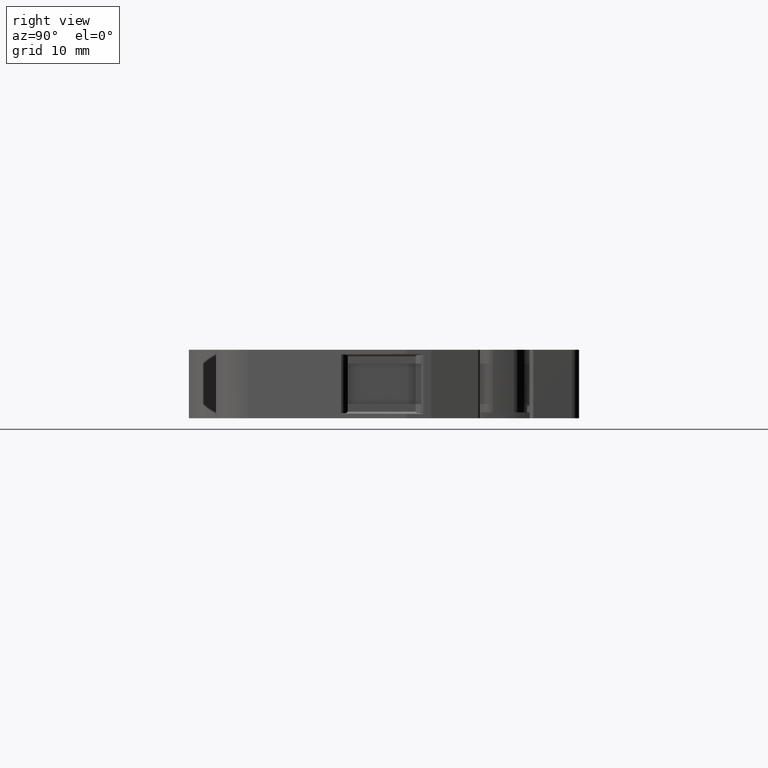
[diagram: clean part render]
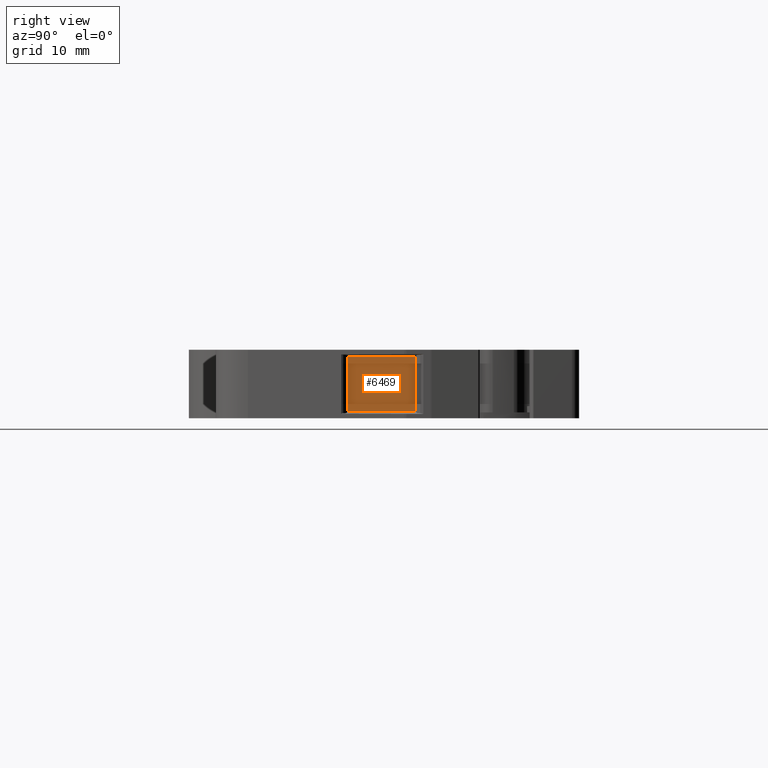
[diagram: same view with one face highlighted and labeled with its STEP entity id]
A machine part, right view. The second image highlights one B-rep face of the part: STEP entity #6469.
In plain terms, the highlighted planar face has unit normal (1, 0, 0).
Its self-contained STEP definition (entity closure, byte-faithful):
#315 = EDGE_CURVE ( 'NONE', #379, #6428, #488, .T. ) ;
#379 = VERTEX_POINT ( 'NONE', #1048 ) ;
#453 = VECTOR ( 'NONE', #994, 1000.000000000000000 ) ;
#488 = LINE ( 'NONE', #7469, #453 ) ;
#915 = VERTEX_POINT ( 'NONE', #11056 ) ;
#950 = ORIENTED_EDGE ( 'NONE', *, *, #2141, .T. ) ;
#994 = DIRECTION ( 'NONE',  ( 0.0000000000000000000, -1.000000000000000000, -6.282148381557110007E-14 ) ) ;
#1048 = CARTESIAN_POINT ( 'NONE',  ( 1956.707898737004825, 506.8404799792539848, -9.465977548125380281 ) ) ;
#1180 = CARTESIAN_POINT ( 'NONE',  ( 1956.707898737004825, 501.1028430674989522, -9.465977548127479935 ) ) ;
#1190 = LINE ( 'NONE', #9712, #6425 ) ;
#1234 = PLANE ( 'NONE',  #4204 ) ;
#1735 = VECTOR ( 'NONE', #4185, 1000.000000000000000 ) ;
#2141 = EDGE_CURVE ( 'NONE', #6841, #379, #6758, .T. ) ;
#2348 = EDGE_CURVE ( 'NONE', #6428, #915, #8868, .T. ) ;
#2488 = VECTOR ( 'NONE', #7905, 1000.000000000000000 ) ;
#3132 = ORIENTED_EDGE ( 'NONE', *, *, #315, .T. ) ;
#3605 = EDGE_LOOP ( 'NONE', ( #3132, #6482, #5451, #950 ) ) ;
#3745 = CARTESIAN_POINT ( 'NONE',  ( 1956.707898735189701, 506.8404799779819996, -14.13402245060228068 ) ) ;
#3756 = DIRECTION ( 'NONE',  ( 1.000000000000000000, 0.0000000000000000000, 0.0000000000000000000 ) ) ;
#4185 = DIRECTION ( 'NONE',  ( 0.0000000000000000000, 0.0000000000000000000, 1.000000000000000000 ) ) ;
#4204 = AXIS2_PLACEMENT_3D ( 'NONE', #9969, #3756, #7196 ) ;
#4419 = CARTESIAN_POINT ( 'NONE',  ( 1956.707898737004825, 501.1028430674989522, -8.724999999999999645 ) ) ;
#5451 = ORIENTED_EDGE ( 'NONE', *, *, #9961, .T. ) ;
#6425 = VECTOR ( 'NONE', #9762, 1000.000000000000000 ) ;
#6428 = VERTEX_POINT ( 'NONE', #1180 ) ;
#6469 = ADVANCED_FACE ( 'NONE', ( #9060 ), #1234, .T. ) ;
#6482 = ORIENTED_EDGE ( 'NONE', *, *, #2348, .T. ) ;
#6758 = LINE ( 'NONE', #10226, #1735 ) ;
#6841 = VERTEX_POINT ( 'NONE', #3745 ) ;
#7196 = DIRECTION ( 'NONE',  ( 0.0000000000000000000, 0.0000000000000000000, -1.000000000000000000 ) ) ;
#7469 = CARTESIAN_POINT ( 'NONE',  ( 1956.707898735324761, 451.6714481572469708, -9.465977549306289873 ) ) ;
#7905 = DIRECTION ( 'NONE',  ( 0.0000000000000000000, 0.0000000000000000000, -1.000000000000000000 ) ) ;
#8868 = LINE ( 'NONE', #4419, #2488 ) ;
#9060 = FACE_OUTER_BOUND ( 'NONE', #3605, .T. ) ;
#9712 = CARTESIAN_POINT ( 'NONE',  ( 1956.707898735324761, 451.6714481572469708, -14.13402245069370089 ) ) ;
#9762 = DIRECTION ( 'NONE',  ( 0.0000000000000000000, 1.000000000000000000, -6.282148381557110007E-14 ) ) ;
#9961 = EDGE_CURVE ( 'NONE', #915, #6841, #1190, .T. ) ;
#9969 = CARTESIAN_POINT ( 'NONE',  ( 1956.707898735324761, 510.7023776814050393, -62.28830851949980030 ) ) ;
#10226 = CARTESIAN_POINT ( 'NONE',  ( 1956.707898735189701, 506.8404799779829659, -54.16595289389319845 ) ) ;
#11056 = CARTESIAN_POINT ( 'NONE',  ( 1956.707898737004825, 501.1028430674979859, -14.13402245187456074 ) ) ;